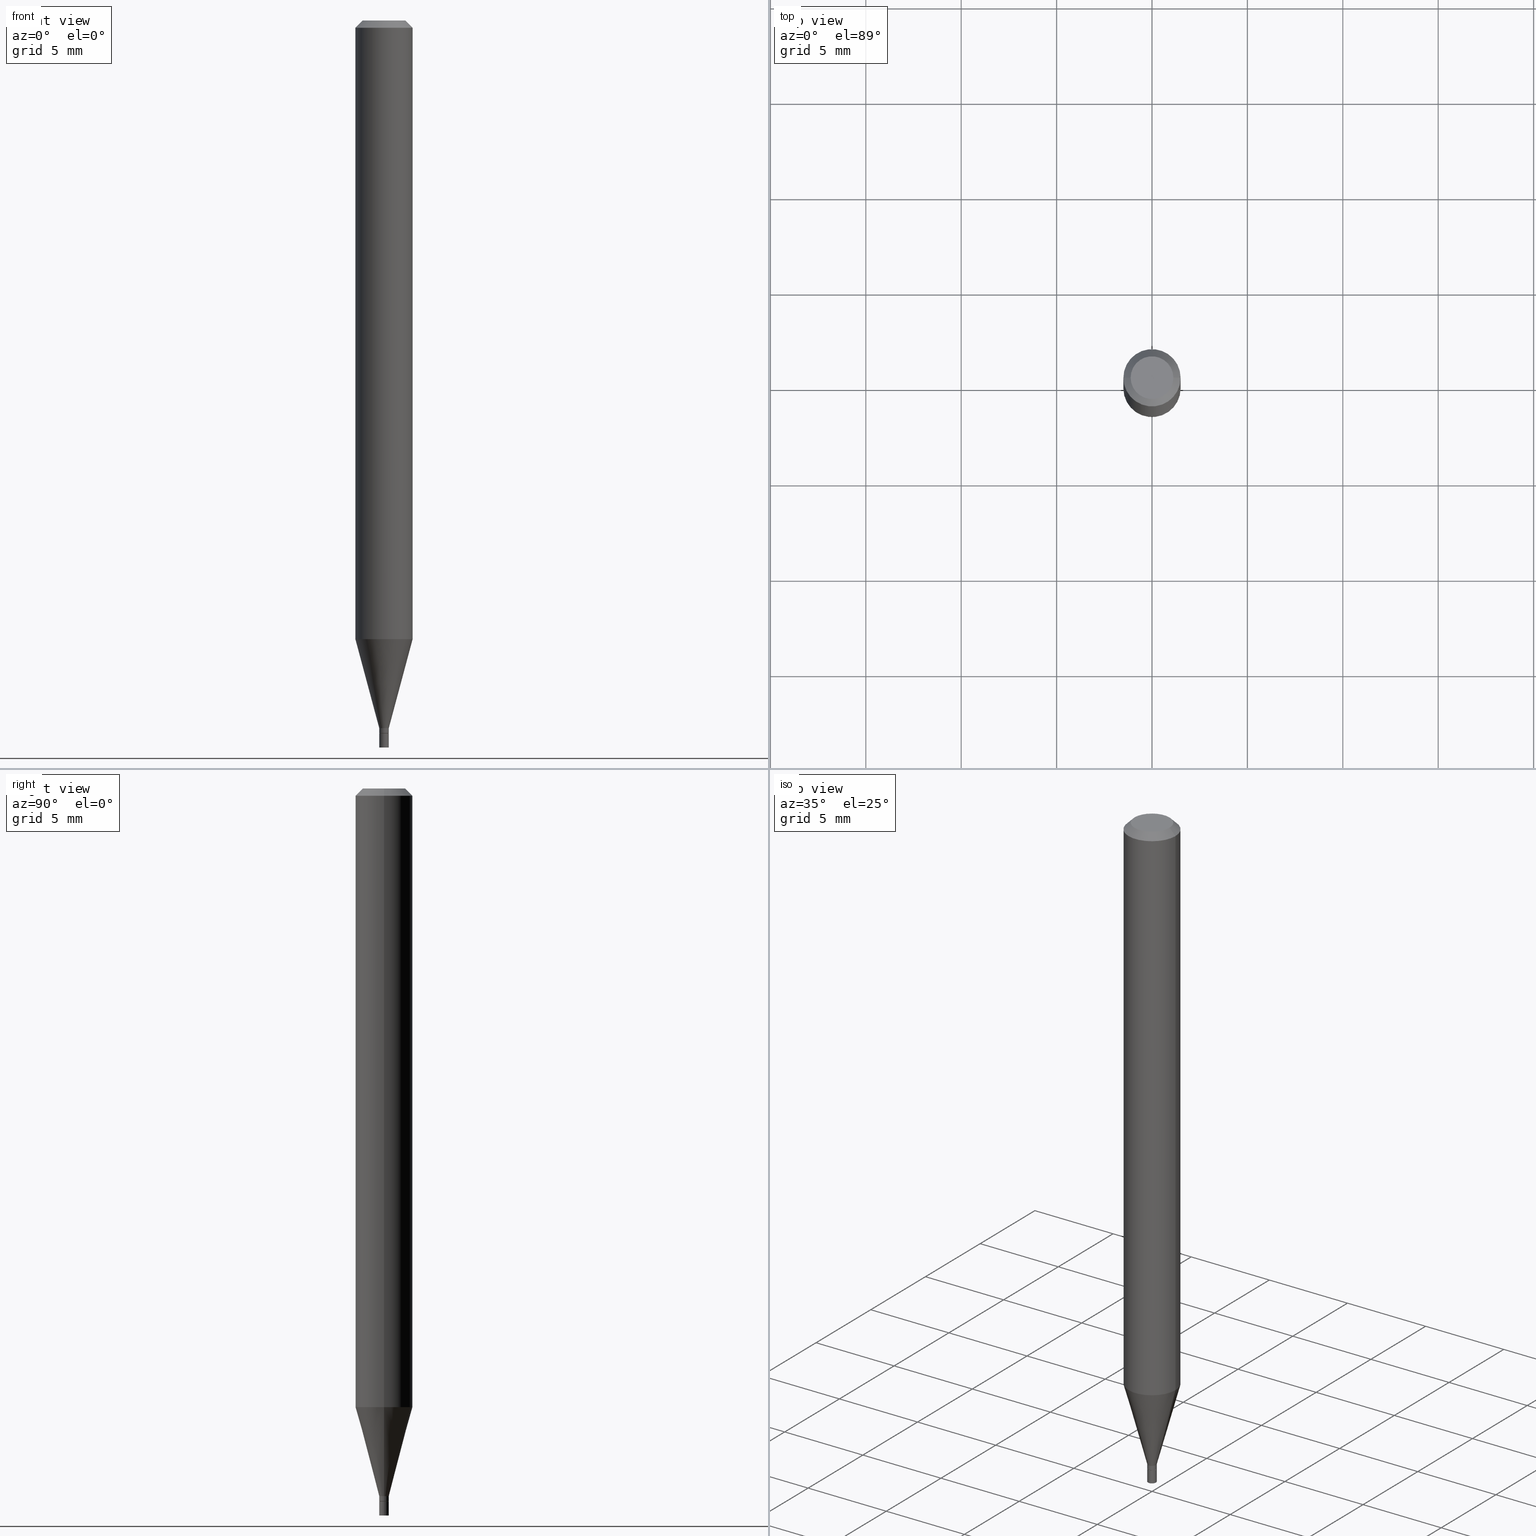
[diagram: canonical four-view strip — front | top / right | iso, engineering-drawing reading convention]
A machine part, canonical four-view strip (front | top / right | iso — engineering-drawing reading convention). The complete STEP part file that produces these views, byte-faithful:
ISO-10303-21;
HEADER;
FILE_DESCRIPTION (( 'STEP AP203' ),
    '1' );
FILE_NAME ('02804.STEP',
    '2024-03-18T21:40:59',
    ( '' ),
    ( '' ),
    'SwSTEP 2.0',
    'SolidWorks 2023',
    '' );
FILE_SCHEMA (( 'CONFIG_CONTROL_DESIGN' ));
ENDSEC;

DATA;
#1 = DIRECTION ( 'NONE',  ( -1.000000000000000000, 6.982962677686265922E-15, -4.876176775795935793E-29 ) ) ;
#2 = DIRECTION ( 'NONE',  ( -2.445468806185136877E-29, 3.491481338843145188E-15, 1.000000000000000000 ) ) ;
#3 = DIRECTION ( 'NONE',  ( -2.445468806185136597E-29, 3.491481338843145583E-15, 1.000000000000000000 ) ) ;
#4 = CALENDAR_DATE ( 2024, 18, 3 ) ;
#5 = ORIENTED_EDGE ( 'NONE', *, *, #219, .T. ) ;
#6 = ORIENTED_EDGE ( 'NONE', *, *, #318, .T. ) ;
#7 = SECURITY_CLASSIFICATION_LEVEL ( 'unclassified' ) ;
#8 = LOCAL_TIME ( 17, 40, 59.00000000000000000, #338 ) ;
#9 = ORIENTED_EDGE ( 'NONE', *, *, #453, .F. ) ;
#10 = VECTOR ( 'NONE', #58, 39.37007874015748143 ) ;
#11 = DIRECTION ( 'NONE',  ( -2.445468806185136597E-29, 3.491481338843145583E-15, 1.000000000000000000 ) ) ;
#12 = ORIENTED_EDGE ( 'NONE', *, *, #289, .T. ) ;
#13 = DIRECTION ( 'NONE',  ( 1.000000000000000000, -6.982962677686276177E-15, 0.000000000000000000 ) ) ;
#14 = PERSON_AND_ORGANIZATION ( #231, #210 ) ;
#15 = ORIENTED_EDGE ( 'NONE', *, *, #271, .T. ) ;
#16 = DIRECTION ( 'NONE',  ( -2.445468806185136597E-29, 3.491481338843145583E-15, 1.000000000000000000 ) ) ;
#17 = PRODUCT_RELATED_PRODUCT_CATEGORY ( 'detail', '', ( #373 ) ) ;
#18 = ORIENTED_EDGE ( 'NONE', *, *, #293, .F. ) ;
#19 = DIRECTION ( 'NONE',  ( -2.445468806185136877E-29, 3.491481338843145188E-15, 1.000000000000000000 ) ) ;
#20 = CONICAL_SURFACE ( 'NONE', #97, 0.009349999999999998937, 0.7853981633974728149 ) ;
#21 = CARTESIAN_POINT ( 'NONE',  ( 3.570384457030299835E-29, -5.097562754710993158E-15, -1.459999999999999964 ) ) ;
#22 = CARTESIAN_POINT ( 'NONE',  ( -0.05904999999999999832, 3.599717260347268549E-16, -0.01499999999999999944 ) ) ;
#23 = ADVANCED_FACE ( 'NONE', ( #332 ), #20, .T. ) ;
#24 = ORIENTED_EDGE ( 'NONE', *, *, #135, .F. ) ;
#25 = CONICAL_SURFACE ( 'NONE', #275, 0.009849999999999924788, 0.2617993877991505181 ) ;
#26 = CONICAL_SURFACE ( 'NONE', #84, 0.009849999999999924788, 0.2617993877991505181 ) ;
#27 = ORIENTED_EDGE ( 'NONE', *, *, #143, .F. ) ;
#28 = ADVANCED_FACE ( 'NONE', ( #148 ), #100, .T. ) ;
#29 = ADVANCED_FACE ( 'NONE', ( #440 ), #42, .T. ) ;
#30 = EDGE_LOOP ( 'NONE', ( #167, #99, #399, #226 ) ) ;
#31 = CIRCLE ( 'NONE', #295, 0.009849999999999924788 ) ;
#32 = LENGTH_MEASURE_WITH_UNIT ( LENGTH_MEASURE( 0.02539999999999999897 ), #171 );
#33 = DIRECTION ( 'NONE',  ( -2.445468806185136597E-29, 3.491481338843145583E-15, 1.000000000000000000 ) ) ;
#34 =( CONVERSION_BASED_UNIT ( 'INCH', #32 ) LENGTH_UNIT ( ) NAMED_UNIT ( #282 ) );
#35 = DIRECTION ( 'NONE',  ( 1.000000000000000000, -6.982962677686285643E-15, 0.000000000000000000 ) ) ;
#36 = DIRECTION ( 'NONE',  ( 1.000000000000000000, -6.982962677686273021E-15, 0.000000000000000000 ) ) ;
#37 = APPLICATION_CONTEXT ( 'configuration controlled 3d designs of mechanical parts and assemblies' ) ;
#38 = DIRECTION ( 'NONE',  ( 1.000000000000000000, -6.982962677686276177E-15, 0.000000000000000000 ) ) ;
#39 = VECTOR ( 'NONE', #306, 39.37007874015748143 ) ;
#40 = CARTESIAN_POINT ( 'NONE',  ( 0.000000000000000000, 0.000000000000000000, 0.000000000000000000 ) ) ;
#41 = CIRCLE ( 'NONE', #159, 0.009849999999999999381 ) ;
#42 = CYLINDRICAL_SURFACE ( 'NONE', #383, 0.009849999999999921318 ) ;
#43 = EDGE_CURVE ( 'NONE', #157, #329, #170, .T. ) ;
#44 = PERSON_AND_ORGANIZATION_ROLE ( 'design_supplier' ) ;
#45 = VERTEX_POINT ( 'NONE', #208 ) ;
#46 = DIRECTION ( 'NONE',  ( -2.445468806185136597E-29, 3.491481338843145583E-15, 1.000000000000000000 ) ) ;
#47 = DATE_AND_TIME ( #220, #390 ) ;
#48 = ORIENTED_EDGE ( 'NONE', *, *, #396, .T. ) ;
#49 = CARTESIAN_POINT ( 'NONE',  ( 3.668203209277705088E-31, -5.237222008264718399E-17, -0.01499999999999999944 ) ) ;
#50 = PERSON_AND_ORGANIZATION ( #231, #210 ) ;
#51 = CIRCLE ( 'NONE', #347, 0.04404999999999999888 ) ;
#52 = EDGE_CURVE ( 'NONE', #266, #85, #442, .T. ) ;
#53 = AXIS2_PLACEMENT_3D ( 'NONE', #294, #258, #351 ) ;
#54 = DIRECTION ( 'NONE',  ( 1.000000000000000000, -6.982962677686229634E-15, 0.000000000000000000 ) ) ;
#55 = VECTOR ( 'NONE', #92, 39.37007874015748143 ) ;
#56 = COORDINATED_UNIVERSAL_TIME_OFFSET ( 5, 0, .BEHIND. ) ;
#57 = ORIENTED_EDGE ( 'NONE', *, *, #241, .F. ) ;
#58 = DIRECTION ( 'NONE',  ( -2.445468806185136877E-29, 3.491481338843145188E-15, 1.000000000000000000 ) ) ;
#59 = ORIENTED_EDGE ( 'NONE', *, *, #271, .F. ) ;
#60 = CARTESIAN_POINT ( 'NONE',  ( 0.009849999999999999381, -6.878218237520971813E-17, 4.803034124158995733E-31 ) ) ;
#61 = DIRECTION ( 'NONE',  ( 1.000000000000000000, -6.982962677686229634E-15, 0.000000000000000000 ) ) ;
#62 = VECTOR ( 'NONE', #261, 39.37007874015748854 ) ;
#63 = EDGE_CURVE ( 'NONE', #254, #77, #302, .T. ) ;
#64 = CONICAL_SURFACE ( 'NONE', #71, 0.05904999999999999832, 0.7853981633974206344 ) ;
#65 = CARTESIAN_POINT ( 'NONE',  ( 0.000000000000000000, 0.000000000000000000, 0.000000000000000000 ) ) ;
#66 = EDGE_LOOP ( 'NONE', ( #311, #59, #380, #328 ) ) ;
#67 = EDGE_LOOP ( 'NONE', ( #48, #415 ) ) ;
#68 = DIRECTION ( 'NONE',  ( 0.2588190451025217942, 1.565188264969618812E-15, 0.9659258262890679791 ) ) ;
#69 = ADVANCED_FACE ( 'NONE', ( #433 ), #25, .T. ) ;
#70 = CARTESIAN_POINT ( 'NONE',  ( -0.04404999999999999888, 3.337856159934048437E-16, 8.332887894987363815E-16 ) ) ;
#71 = AXIS2_PLACEMENT_3D ( 'NONE', #288, #395, #434 ) ;
#72 = CARTESIAN_POINT ( 'NONE',  ( 0.000000000000000000, 0.000000000000000000, 0.000000000000000000 ) ) ;
#73 = FACE_OUTER_BOUND ( 'NONE', #238, .T. ) ;
#74 = ADVANCED_FACE ( 'NONE', ( #105 ), #397, .T. ) ;
#75 = FACE_OUTER_BOUND ( 'NONE', #66, .T. ) ;
#76 = CARTESIAN_POINT ( 'NONE',  ( 3.075995059520799729E-16, 0.04404999999999999888, 2.628446417733287467E-16 ) ) ;
#77 = VERTEX_POINT ( 'NONE', #249 ) ;
#78 = LINE ( 'NONE', #174, #87 ) ;
#79 = ADVANCED_FACE ( 'NONE', ( #465 ), #394, .F. ) ;
#80 = APPROVAL_DATE_TIME ( #298, #330 ) ;
#81 = CARTESIAN_POINT ( 'NONE',  ( 0.009849999999999999381, -5.203005491144055129E-15, -1.470500000000000140 ) ) ;
#82 = DIRECTION ( 'NONE',  ( 1.000000000000000000, -6.982962677686285643E-15, 0.000000000000000000 ) ) ;
#83 = APPROVAL_ROLE ( '' ) ;
#84 = AXIS2_PLACEMENT_3D ( 'NONE', #457, #382, #379 ) ;
#85 = VERTEX_POINT ( 'NONE', #400 ) ;
#86 = MANIFOLD_SOLID_BREP ( 'Body-Move/Copy2[1]', #246 ) ;
#87 = VECTOR ( 'NONE', #355, 39.37007874015748143 ) ;
#88 = DIRECTION ( 'NONE',  ( -2.445468806185136597E-29, 3.491481338843145583E-15, 1.000000000000000000 ) ) ;
#89 = ORIENTED_EDGE ( 'NONE', *, *, #289, .F. ) ;
#90 = DIRECTION ( 'NONE',  ( -2.445468806185136597E-29, 3.491481338843145583E-15, 1.000000000000000000 ) ) ;
#91 = DIRECTION ( 'NONE',  ( 1.000000000000000000, -6.982962677686273021E-15, 0.000000000000000000 ) ) ;
#92 = DIRECTION ( 'NONE',  ( 0.7071067811865279218, -7.319954787623189781E-15, -0.7071067811865671127 ) ) ;
#93 = CIRCLE ( 'NONE', #422, 0.05904999999999999832 ) ;
#94 = ADVANCED_FACE ( 'NONE', ( #75 ), #256, .T. ) ;
#95 = CARTESIAN_POINT ( 'NONE',  ( -0.05904999999999999832, -1.834844512474547431E-15, -0.01499999999999999944 ) ) ;
#96 = CC_DESIGN_DATE_AND_TIME_ASSIGNMENT ( #262, #414, ( #200 ) ) ;
#97 = AXIS2_PLACEMENT_3D ( 'NONE', #247, #111, #38 ) ;
#98 = EDGE_CURVE ( 'NONE', #191, #432, #78, .T. ) ;
#99 = ORIENTED_EDGE ( 'NONE', *, *, #63, .T. ) ;
#100 = CYLINDRICAL_SURFACE ( 'NONE', #53, 0.05904999999999999832 ) ;
#101 = CC_DESIGN_PERSON_AND_ORGANIZATION_ASSIGNMENT ( #409, #44, ( #381 ) ) ;
#102 = AXIS2_PLACEMENT_3D ( 'NONE', #137, #3, #391 ) ;
#103 = MECHANICAL_CONTEXT ( 'NONE', #126, 'mechanical' ) ;
#104 = APPROVAL_PERSON_ORGANIZATION ( #14, #236, #83 ) ;
#105 = FACE_OUTER_BOUND ( 'NONE', #393, .T. ) ;
#106 = DIRECTION ( 'NONE',  ( -2.445468806185136597E-29, 3.491481338843145583E-15, 1.000000000000000000 ) ) ;
#107 = ADVANCED_FACE ( 'NONE', ( #279 ), #362, .F. ) ;
#108 = DIRECTION ( 'NONE',  ( 1.000000000000000000, -6.982962677686265922E-15, 4.876176775795935232E-29 ) ) ;
#109 = DIRECTION ( 'NONE',  ( -2.445468806185136877E-29, 3.491481338843145188E-15, 1.000000000000000000 ) ) ;
#110 = ADVANCED_FACE ( 'NONE', ( #287 ), #435, .T. ) ;
#111 = DIRECTION ( 'NONE',  ( -2.445468806185136597E-29, 3.491481338843145583E-15, 1.000000000000000000 ) ) ;
#112 = CALENDAR_DATE ( 2024, 18, 3 ) ;
#113 = CIRCLE ( 'NONE', #224, 0.05904999999999999832 ) ;
#114 = ORIENTED_EDGE ( 'NONE', *, *, #293, .T. ) ;
#115 = CARTESIAN_POINT ( 'NONE',  ( 0.000000000000000000, 0.000000000000000000, 0.000000000000000000 ) ) ;
#116 = DATE_AND_TIME ( #4, #8 ) ;
#117 = CARTESIAN_POINT ( 'NONE',  ( -0.009349999999999998937, -5.067787562975276372E-15, -1.470500000000000140 ) ) ;
#118 = APPROVAL_STATUS ( 'not_yet_approved' ) ;
#119 = ORIENTED_EDGE ( 'NONE', *, *, #52, .F. ) ;
#120 = CARTESIAN_POINT ( 'NONE',  ( -0.009849999999999999381, -5.115734199044412589E-15, -1.500000000000000222 ) ) ;
#121 = AXIS2_PLACEMENT_3D ( 'NONE', #253, #169, #392 ) ;
#122 = ORIENTED_EDGE ( 'NONE', *, *, #98, .F. ) ;
#123 = AXIS2_PLACEMENT_3D ( 'NONE', #356, #142, #325 ) ;
#124 = DIRECTION ( 'NONE',  ( -2.445468806185136597E-29, 3.491481338843145583E-15, 1.000000000000000000 ) ) ;
#125 = PERSON_AND_ORGANIZATION ( #231, #210 ) ;
#126 = APPLICATION_CONTEXT ( 'configuration controlled 3d designs of mechanical parts and assemblies' ) ;
#127 = DIRECTION ( 'NONE',  ( 1.000000000000000000, -6.982962677686282488E-15, 0.000000000000000000 ) ) ;
#128 = FACE_OUTER_BOUND ( 'NONE', #445, .T. ) ;
#129 = FACE_OUTER_BOUND ( 'NONE', #260, .T. ) ;
#130 = CC_DESIGN_DATE_AND_TIME_ASSIGNMENT ( #333, #193, ( #187 ) ) ;
#131 = AXIS2_PLACEMENT_3D ( 'NONE', #337, #335, #61 ) ;
#132 = CC_DESIGN_APPROVAL ( #330, ( #200 ) ) ;
#133 = AXIS2_PLACEMENT_3D ( 'NONE', #299, #412, #230 ) ;
#134 = CARTESIAN_POINT ( 'NONE',  ( -2.037781741262937917E-44, 2.909412258402039979E-30, 8.332887894987386495E-16 ) ) ;
#135 = EDGE_CURVE ( 'NONE', #364, #317, #113, .T. ) ;
#136 = DIRECTION ( 'NONE',  ( 1.000000000000000000, -6.982962677686229634E-15, 0.000000000000000000 ) ) ;
#137 = CARTESIAN_POINT ( 'NONE',  ( 3.668203209277704895E-29, -5.237222008264718177E-15, -1.500000000000000222 ) ) ;
#138 = FACE_OUTER_BOUND ( 'NONE', #229, .T. ) ;
#139 = ORIENTED_EDGE ( 'NONE', *, *, #274, .F. ) ;
#140 = AXIS2_PLACEMENT_3D ( 'NONE', #40, #464, #348 ) ;
#141 = PERSON_AND_ORGANIZATION ( #231, #210 ) ;
#142 = DIRECTION ( 'NONE',  ( 2.438088387897960049E-29, -3.491481338843145188E-15, -1.000000000000000000 ) ) ;
#143 = EDGE_CURVE ( 'NONE', #329, #432, #285, .T. ) ;
#144 = DIRECTION ( 'NONE',  ( -2.445468806185136597E-29, 3.491481338843145583E-15, 1.000000000000000000 ) ) ;
#145 = DIRECTION ( 'NONE',  ( -2.445468806185136597E-29, 3.491481338843145583E-15, 1.000000000000000000 ) ) ;
#146 = SHAPE_DEFINITION_REPRESENTATION ( #413, #461 ) ;
#147 = EDGE_LOOP ( 'NONE', ( #339, #284 ) ) ;
#148 = FACE_OUTER_BOUND ( 'NONE', #386, .T. ) ;
#149 = CC_DESIGN_APPROVAL ( #460, ( #381 ) ) ;
#150 = COORDINATED_UNIVERSAL_TIME_OFFSET ( 5, 0, .BEHIND. ) ;
#151 = VECTOR ( 'NONE', #19, 39.37007874015748143 ) ;
#152 = ORIENTED_EDGE ( 'NONE', *, *, #265, .T. ) ;
#153 = CARTESIAN_POINT ( 'NONE',  ( 0.009849999999999921318, -5.201259750474633625E-15, -1.470000000000000195 ) ) ;
#154 = EDGE_CURVE ( 'NONE', #45, #206, #41, .T. ) ;
#155 = DIRECTION ( 'NONE',  ( 1.000000000000000000, -6.982962677686276177E-15, 0.000000000000000000 ) ) ;
#156 = APPROVAL_ROLE ( '' ) ;
#157 = VERTEX_POINT ( 'NONE', #443 ) ;
#158 = CARTESIAN_POINT ( 'NONE',  ( 0.05904999999999999832, -4.123439461173740327E-16, 2.879382386107500220E-30 ) ) ;
#159 = AXIS2_PLACEMENT_3D ( 'NONE', #297, #90, #54 ) ;
#160 = CARTESIAN_POINT ( 'NONE',  ( 3.570384457030299835E-29, -5.097562754710993158E-15, -1.459999999999999964 ) ) ;
#161 = CC_DESIGN_PERSON_AND_ORGANIZATION_ASSIGNMENT ( #223, #259, ( #200 ) ) ;
#162 = CARTESIAN_POINT ( 'NONE',  ( 0.009849999999999921318, -6.878218237520917578E-17, 4.803034124158958949E-31 ) ) ;
#163 = DIRECTION ( 'NONE',  ( -0.7071067811865279218, 2.468850131082051562E-15, -0.7071067811865671127 ) ) ;
#164 = AXIS2_PLACEMENT_3D ( 'NONE', #76, #218, #1 ) ;
#165 = ORIENTED_EDGE ( 'NONE', *, *, #274, .T. ) ;
#166 = ORIENTED_EDGE ( 'NONE', *, *, #448, .F. ) ;
#167 = ORIENTED_EDGE ( 'NONE', *, *, #404, .F. ) ;
#168 = CIRCLE ( 'NONE', #233, 0.04404999999999999888 ) ;
#169 = DIRECTION ( 'NONE',  ( -2.438088387897960049E-29, 3.491481338843145188E-15, 1.000000000000000000 ) ) ;
#170 = LINE ( 'NONE', #463, #234 ) ;
#171 =( LENGTH_UNIT ( ) NAMED_UNIT ( * ) SI_UNIT ( $, .METRE. ) );
#172 = DIRECTION ( 'NONE',  ( 1.000000000000000000, -6.982962677686266711E-15, 4.876176775795936353E-29 ) ) ;
#173 = ORIENTED_EDGE ( 'NONE', *, *, #305, .T. ) ;
#174 = CARTESIAN_POINT ( 'NONE',  ( -0.009849999999999924788, -5.027574295238623898E-15, -1.459999999999999964 ) ) ;
#175 = VECTOR ( 'NONE', #243, 39.37007874015748143 ) ;
#176 = UNCERTAINTY_MEASURE_WITH_UNIT (LENGTH_MEASURE( 1.000000000000000082E-05 ), #34, 'distance_accuracy_value', 'NONE');
#177 = EDGE_CURVE ( 'NONE', #317, #364, #357, .T. ) ;
#178 = AXIS2_PLACEMENT_3D ( 'NONE', #322, #145, #319 ) ;
#179 = PERSON_AND_ORGANIZATION ( #231, #210 ) ;
#180 = ORIENTED_EDGE ( 'NONE', *, *, #448, .T. ) ;
#181 = DIRECTION ( 'NONE',  ( 1.000000000000000000, -6.982962677686282488E-15, 0.000000000000000000 ) ) ;
#182 = CALENDAR_DATE ( 2024, 18, 3 ) ;
#183 = ORIENTED_EDGE ( 'NONE', *, *, #143, .T. ) ;
#184 = ORIENTED_EDGE ( 'NONE', *, *, #177, .F. ) ;
#185 = VERTEX_POINT ( 'NONE', #189 ) ;
#186 = DIRECTION ( 'NONE',  ( 1.000000000000000000, -6.982962677686266711E-15, 0.000000000000000000 ) ) ;
#187 = SECURITY_CLASSIFICATION ( '', '', #7 ) ;
#188 = ORIENTED_EDGE ( 'NONE', *, *, #43, .T. ) ;
#189 = CARTESIAN_POINT ( 'NONE',  ( -0.009349999999999998937, -5.065138335801165171E-15, -1.470500000000000140 ) ) ;
#190 = APPROVAL_DATE_TIME ( #47, #460 ) ;
#191 = VERTEX_POINT ( 'NONE', #269 ) ;
#192 = DIRECTION ( 'NONE',  ( 0.7071067811865647812, -2.468850131082438104E-15, 0.7071067811865301422 ) ) ;
#193 = DATE_TIME_ROLE ( 'classification_date' ) ;
#194 = EDGE_LOOP ( 'NONE', ( #5, #349, #221, #57 ) ) ;
#195 = DIRECTION ( 'NONE',  ( 1.000000000000000000, -6.982962677686265922E-15, 4.876176775795935793E-29 ) ) ;
#196 = EDGE_CURVE ( 'NONE', #185, #341, #343, .T. ) ;
#197 = DIRECTION ( 'NONE',  ( -2.445468806185136597E-29, 3.491481338843145583E-15, 1.000000000000000000 ) ) ;
#198 = CARTESIAN_POINT ( 'NONE',  ( 0.009349999999999998937, -5.199514009805212911E-15, -1.470500000000000140 ) ) ;
#199 = DIRECTION ( 'NONE',  ( -2.445468806185136597E-29, 3.491481338843145583E-15, 1.000000000000000000 ) ) ;
#200 = PRODUCT_DEFINITION ( 'UNKNOWN', '', #381, #423 ) ;
#201 = AXIS2_PLACEMENT_3D ( 'NONE', #444, #124, #91 ) ;
#202 = ORIENTED_EDGE ( 'NONE', *, *, #453, .T. ) ;
#203 = ORIENTED_EDGE ( 'NONE', *, *, #321, .F. ) ;
#204 = EDGE_LOOP ( 'NONE', ( #183, #180, #184, #89 ) ) ;
#205 = CC_DESIGN_PERSON_AND_ORGANIZATION_ASSIGNMENT ( #141, #286, ( #373 ) ) ;
#206 = VERTEX_POINT ( 'NONE', #81 ) ;
#207 = CIRCLE ( 'NONE', #273, 0.009849999999999999381 ) ;
#208 = CARTESIAN_POINT ( 'NONE',  ( -0.009849999999999999381, -5.115734199044412589E-15, -1.470500000000000140 ) ) ;
#209 = AXIS2_PLACEMENT_3D ( 'NONE', #344, #88, #82 ) ;
#210 = ORGANIZATION ( 'UNSPECIFIED', 'UNSPECIFIED', '' ) ;
#211 = DIRECTION ( 'NONE',  ( 1.000000000000000000, -6.982962677686265922E-15, 4.876176775795935232E-29 ) ) ;
#212 = DIRECTION ( 'NONE',  ( -2.445468806185136597E-29, 3.491481338843145583E-15, 1.000000000000000000 ) ) ;
#213 = CARTESIAN_POINT ( 'NONE',  ( -0.009849999999999921318, 6.998845947236930924E-17, -4.845151063901043591E-31 ) ) ;
#214 = DIRECTION ( 'NONE',  ( -2.445468806185136597E-29, 3.491481338843145583E-15, 1.000000000000000000 ) ) ;
#215 = DIRECTION ( 'NONE',  ( -1.000000000000000000, 6.982962677686266711E-15, 0.000000000000000000 ) ) ;
#216 = CLOSED_SHELL ( 'NONE', ( #74, #23, #418, #374, #69, #326, #28, #94, #79, #416, #251, #29 ) ) ;
#217 = ORIENTED_EDGE ( 'NONE', *, *, #358, .F. ) ;
#218 = DIRECTION ( 'NONE',  ( 2.438088387897960049E-29, -3.491481338843145188E-15, -1.000000000000000000 ) ) ;
#219 = EDGE_CURVE ( 'NONE', #77, #254, #377, .T. ) ;
#220 = CALENDAR_DATE ( 2024, 18, 3 ) ;
#221 = ORIENTED_EDGE ( 'NONE', *, *, #396, .F. ) ;
#222 = LINE ( 'NONE', #60, #151 ) ;
#223 = PERSON_AND_ORGANIZATION ( #231, #210 ) ;
#224 = AXIS2_PLACEMENT_3D ( 'NONE', #437, #46, #186 ) ;
#225 = APPROVAL_PERSON_ORGANIZATION ( #179, #330, #156 ) ;
#226 = ORIENTED_EDGE ( 'NONE', *, *, #154, .F. ) ;
#227 = ADVANCED_FACE ( 'NONE', ( #372 ), #340, .F. ) ;
#228 = LINE ( 'NONE', #158, #10 ) ;
#229 = EDGE_LOOP ( 'NONE', ( #203, #292 ) ) ;
#230 = DIRECTION ( 'NONE',  ( 1.000000000000000000, -6.982962677686276177E-15, 0.000000000000000000 ) ) ;
#231 = PERSON ( 'UNSPECIFIED', 'UNSPECIFIED', 'UNSPECIFIED', ('UNSPECIFIED'), ('UNSPECIFIED'), ('UNSPECIFIED') ) ;
#232 = LINE ( 'NONE', #162, #39 ) ;
#233 = AXIS2_PLACEMENT_3D ( 'NONE', #407, #366, #267 ) ;
#234 = VECTOR ( 'NONE', #68, 39.37007874015748143 ) ;
#235 = CYLINDRICAL_SURFACE ( 'NONE', #350, 0.05904999999999999832 ) ;
#236 = APPROVAL ( #368, 'UNSPECIFIED' ) ;
#237 = CARTESIAN_POINT ( 'NONE',  ( 3.596061879495243621E-29, -5.134223308768845522E-15, -1.470500000000000140 ) ) ;
#238 = EDGE_LOOP ( 'NONE', ( #324, #384, #458, #217 ) ) ;
#239 = AXIS2_PLACEMENT_3D ( 'NONE', #427, #33, #35 ) ;
#240 = MANIFOLD_SOLID_BREP ( 'Body-Move/Copy2[2]', #216 ) ;
#241 = EDGE_CURVE ( 'NONE', #77, #206, #222, .T. ) ;
#242 =( NAMED_UNIT ( * ) PLANE_ANGLE_UNIT ( ) SI_UNIT ( $, .RADIAN. ) );
#243 = DIRECTION ( 'NONE',  ( -2.445468806185136877E-29, 3.491481338843145188E-15, 1.000000000000000000 ) ) ;
#244 = ORIENTED_EDGE ( 'NONE', *, *, #441, .F. ) ;
#245 = CIRCLE ( 'NONE', #248, 0.009849999999999924788 ) ;
#246 = CLOSED_SHELL ( 'NONE', ( #110, #227, #428, #107 ) ) ;
#247 = CARTESIAN_POINT ( 'NONE',  ( 3.596061879495243621E-29, -5.134223308768845522E-15, -1.470500000000000140 ) ) ;
#248 = AXIS2_PLACEMENT_3D ( 'NONE', #21, #16, #127 ) ;
#249 = CARTESIAN_POINT ( 'NONE',  ( 0.009849999999999999381, -5.306004190639927784E-15, -1.500000000000000222 ) ) ;
#250 = DIRECTION ( 'NONE',  ( -2.445468806185136597E-29, 3.491481338843145583E-15, 1.000000000000000000 ) ) ;
#251 = ADVANCED_FACE ( 'NONE', ( #129 ), #388, .T. ) ;
#252 = CARTESIAN_POINT ( 'NONE',  ( 3.570384457030299835E-29, -5.097562754710993158E-15, -1.459999999999999964 ) ) ;
#253 = CARTESIAN_POINT ( 'NONE',  ( 3.596061879495243621E-29, -5.134223308768845522E-15, -1.470500000000000140 ) ) ;
#254 = VERTEX_POINT ( 'NONE', #120 ) ;
#255 = DIRECTION ( 'NONE',  ( 2.445468806185136597E-29, -3.491481338843145583E-15, -1.000000000000000000 ) ) ;
#256 = CONICAL_SURFACE ( 'NONE', #431, 0.05904999999999999832, 0.7853981633974206344 ) ;
#257 = PERSON_AND_ORGANIZATION_ROLE ( 'creator' ) ;
#258 = DIRECTION ( 'NONE',  ( -2.445468806185136597E-29, 3.491481338843145583E-15, 1.000000000000000000 ) ) ;
#259 = PERSON_AND_ORGANIZATION_ROLE ( 'creator' ) ;
#260 = EDGE_LOOP ( 'NONE', ( #371, #389, #114, #278 ) ) ;
#261 = DIRECTION ( 'NONE',  ( -0.7071067811865647812, 7.493145998870415691E-15, 0.7071067811865301422 ) ) ;
#262 = DATE_AND_TIME ( #112, #429 ) ;
#263 = ORIENTED_EDGE ( 'NONE', *, *, #441, .T. ) ;
#264 = DIRECTION ( 'NONE',  ( 1.000000000000000000, -6.982962677686282488E-15, 0.000000000000000000 ) ) ;
#265 = EDGE_CURVE ( 'NONE', #185, #85, #403, .T. ) ;
#266 = VERTEX_POINT ( 'NONE', #153 ) ;
#267 = DIRECTION ( 'NONE',  ( 1.000000000000000000, -6.982962677686265922E-15, 4.957392940945096353E-29 ) ) ;
#268 = APPROVAL_STATUS ( 'not_yet_approved' ) ;
#269 = CARTESIAN_POINT ( 'NONE',  ( -0.009849999999999924788, -4.532233292785705389E-15, -1.459999999999999964 ) ) ;
#270 = CARTESIAN_POINT ( 'NONE',  ( 0.05904999999999999138, -4.868811721916501294E-15, -1.276383100267611814 ) ) ;
#271 = EDGE_CURVE ( 'NONE', #410, #315, #168, .T. ) ;
#272 = CC_DESIGN_APPROVAL ( #236, ( #187 ) ) ;
#273 = AXIS2_PLACEMENT_3D ( 'NONE', #237, #144, #136 ) ;
#274 = EDGE_CURVE ( 'NONE', #157, #191, #31, .T. ) ;
#275 = AXIS2_PLACEMENT_3D ( 'NONE', #252, #354, #181 ) ;
#276 = LINE ( 'NONE', #352, #175 ) ;
#277 = ORIENTED_EDGE ( 'NONE', *, *, #52, .T. ) ;
#278 = ORIENTED_EDGE ( 'NONE', *, *, #280, .F. ) ;
#279 = FACE_OUTER_BOUND ( 'NONE', #67, .T. ) ;
#280 = EDGE_CURVE ( 'NONE', #85, #266, #421, .T. ) ;
#281 = CARTESIAN_POINT ( 'NONE',  ( -0.05904999999999999832, 4.195754854663391478E-16, -2.904631170795521892E-30 ) ) ;
#282 = DIMENSIONAL_EXPONENTS ( 1.000000000000000000, 0.000000000000000000, 0.000000000000000000, 0.000000000000000000, 0.000000000000000000, 0.000000000000000000, 0.000000000000000000 ) ;
#283 = EDGE_LOOP ( 'NONE', ( #15, #303 ) ) ;
#284 = ORIENTED_EDGE ( 'NONE', *, *, #63, .F. ) ;
#285 = CIRCLE ( 'NONE', #201, 0.05904999999999999832 ) ;
#286 = PERSON_AND_ORGANIZATION_ROLE ( 'design_owner' ) ;
#287 = FACE_OUTER_BOUND ( 'NONE', #194, .T. ) ;
#288 = CARTESIAN_POINT ( 'NONE',  ( 3.668203209277705088E-31, -5.237222008264718399E-17, -0.01499999999999999944 ) ) ;
#289 = EDGE_CURVE ( 'NONE', #329, #317, #228, .T. ) ;
#290 = CARTESIAN_POINT ( 'NONE',  ( 3.668203209277705088E-31, -5.237222008264718399E-17, -0.01499999999999999944 ) ) ;
#291 = COORDINATED_UNIVERSAL_TIME_OFFSET ( 5, 0, .BEHIND. ) ;
#292 = ORIENTED_EDGE ( 'NONE', *, *, #196, .F. ) ;
#293 = EDGE_CURVE ( 'NONE', #341, #266, #304, .T. ) ;
#294 = CARTESIAN_POINT ( 'NONE',  ( 0.000000000000000000, 0.000000000000000000, 0.000000000000000000 ) ) ;
#295 = AXIS2_PLACEMENT_3D ( 'NONE', #160, #197, #264 ) ;
#296 = VECTOR ( 'NONE', #163, 39.37007874015748143 ) ;
#297 = CARTESIAN_POINT ( 'NONE',  ( 3.596061879495243621E-29, -5.134223308768845522E-15, -1.470500000000000140 ) ) ;
#298 = DATE_AND_TIME ( #182, #336 ) ;
#299 = CARTESIAN_POINT ( 'NONE',  ( 3.596061879495243621E-29, -5.134223308768845522E-15, -1.470500000000000140 ) ) ;
#300 = EDGE_LOOP ( 'NONE', ( #9, #369, #6, #313 ) ) ;
#301 = AXIS2_PLACEMENT_3D ( 'NONE', #424, #361, #13 ) ;
#302 = CIRCLE ( 'NONE', #102, 0.009849999999999999381 ) ;
#303 = ORIENTED_EDGE ( 'NONE', *, *, #408, .T. ) ;
#304 = LINE ( 'NONE', #450, #454 ) ;
#305 = EDGE_CURVE ( 'NONE', #191, #157, #245, .T. ) ;
#306 = DIRECTION ( 'NONE',  ( -2.445468806185136877E-29, 3.491481338843145188E-15, 1.000000000000000000 ) ) ;
#307 = FACE_OUTER_BOUND ( 'NONE', #204, .T. ) ;
#308 = CC_DESIGN_PERSON_AND_ORGANIZATION_ASSIGNMENT ( #438, #257, ( #381 ) ) ;
#309 = AXIS2_PLACEMENT_3D ( 'NONE', #72, #212, #108 ) ;
#310 = VECTOR ( 'NONE', #109, 39.37007874015748143 ) ;
#311 = ORIENTED_EDGE ( 'NONE', *, *, #353, .F. ) ;
#312 = DIRECTION ( 'NONE',  ( 1.000000000000000000, -6.982962677686265922E-15, 4.957392940945096353E-29 ) ) ;
#313 = ORIENTED_EDGE ( 'NONE', *, *, #305, .F. ) ;
#314 = AXIS2_PLACEMENT_3D ( 'NONE', #49, #342, #451 ) ;
#315 = VERTEX_POINT ( 'NONE', #375 ) ;
#316 = PLANE ( 'NONE',  #121 ) ;
#317 = VERTEX_POINT ( 'NONE', #417 ) ;
#318 = EDGE_CURVE ( 'NONE', #266, #157, #232, .T. ) ;
#319 = DIRECTION ( 'NONE',  ( 1.000000000000000000, -6.982962677686266711E-15, 4.876176775795936353E-29 ) ) ;
#320 =( NAMED_UNIT ( * ) SI_UNIT ( $, .STERADIAN. ) SOLID_ANGLE_UNIT ( ) );
#321 = EDGE_CURVE ( 'NONE', #341, #185, #367, .T. ) ;
#322 = CARTESIAN_POINT ( 'NONE',  ( 0.000000000000000000, 0.000000000000000000, 0.000000000000000000 ) ) ;
#323 = CARTESIAN_POINT ( 'NONE',  ( 0.000000000000000000, 0.000000000000000000, 0.000000000000000000 ) ) ;
#324 = ORIENTED_EDGE ( 'NONE', *, *, #408, .F. ) ;
#325 = DIRECTION ( 'NONE',  ( -1.000000000000000000, 6.982962677686265922E-15, -4.876176775795935793E-29 ) ) ;
#326 = ADVANCED_FACE ( 'NONE', ( #128 ), #26, .T. ) ;
#327 = FACE_OUTER_BOUND ( 'NONE', #30, .T. ) ;
#328 = ORIENTED_EDGE ( 'NONE', *, *, #135, .T. ) ;
#329 = VERTEX_POINT ( 'NONE', #270 ) ;
#330 = APPROVAL ( #118, 'UNSPECIFIED' ) ;
#331 = CALENDAR_DATE ( 2024, 18, 3 ) ;
#332 = FACE_OUTER_BOUND ( 'NONE', #406, .T. ) ;
#333 = DATE_AND_TIME ( #331, #455 ) ;
#334 = ORIENTED_EDGE ( 'NONE', *, *, #321, .T. ) ;
#335 = DIRECTION ( 'NONE',  ( -2.445468806185136597E-29, 3.491481338843145583E-15, 1.000000000000000000 ) ) ;
#336 = LOCAL_TIME ( 17, 40, 59.00000000000000000, #56 ) ;
#337 = CARTESIAN_POINT ( 'NONE',  ( 3.668203209277704895E-29, -5.237222008264718177E-15, -1.500000000000000222 ) ) ;
#338 = COORDINATED_UNIVERSAL_TIME_OFFSET ( 5, 0, .BEHIND. ) ;
#339 = ORIENTED_EDGE ( 'NONE', *, *, #219, .F. ) ;
#340 = PLANE ( 'NONE',  #401 ) ;
#341 = VERTEX_POINT ( 'NONE', #198 ) ;
#342 = DIRECTION ( 'NONE',  ( -2.445468806185136597E-29, 3.491481338843145583E-15, 1.000000000000000000 ) ) ;
#343 = CIRCLE ( 'NONE', #133, 0.009349999999999998937 ) ;
#344 = CARTESIAN_POINT ( 'NONE',  ( 3.594839145092150820E-29, -5.132477568099424807E-15, -1.470000000000000195 ) ) ;
#345 = AXIS2_PLACEMENT_3D ( 'NONE', #323, #106, #211 ) ;
#346 = LINE ( 'NONE', #419, #55 ) ;
#347 = AXIS2_PLACEMENT_3D ( 'NONE', #134, #436, #312 ) ;
#348 = DIRECTION ( 'NONE',  ( 1.000000000000000000, 0.000000000000000000, 0.000000000000000000 ) ) ;
#349 = ORIENTED_EDGE ( 'NONE', *, *, #404, .T. ) ;
#350 = AXIS2_PLACEMENT_3D ( 'NONE', #65, #199, #456 ) ;
#351 = DIRECTION ( 'NONE',  ( 1.000000000000000000, -6.982962677686266711E-15, 4.876176775795936353E-29 ) ) ;
#352 = CARTESIAN_POINT ( 'NONE',  ( -0.009849999999999999381, 6.998845947236986391E-17, -4.845151063901081251E-31 ) ) ;
#353 = EDGE_CURVE ( 'NONE', #315, #317, #346, .T. ) ;
#354 = DIRECTION ( 'NONE',  ( -2.445468806185136597E-29, 3.491481338843145583E-15, 1.000000000000000000 ) ) ;
#355 = DIRECTION ( 'NONE',  ( -0.2588190451025217942, 5.211531920934552619E-15, 0.9659258262890679791 ) ) ;
#356 = CARTESIAN_POINT ( 'NONE',  ( 6.878218237524566060E-17, 0.009849999999994862865, -1.470500000000000140 ) ) ;
#357 = CIRCLE ( 'NONE', #314, 0.05904999999999999832 ) ;
#358 = EDGE_CURVE ( 'NONE', #410, #364, #378, .T. ) ;
#359 = APPROVAL_ROLE ( '' ) ;
#360 = ORIENTED_EDGE ( 'NONE', *, *, #98, .T. ) ;
#361 = DIRECTION ( 'NONE',  ( -2.445468806185136597E-29, 3.491481338843145583E-15, 1.000000000000000000 ) ) ;
#362 = PLANE ( 'NONE',  #123 ) ;
#363 = COORDINATED_UNIVERSAL_TIME_OFFSET ( 5, 0, .BEHIND. ) ;
#364 = VERTEX_POINT ( 'NONE', #95 ) ;
#365 = DIRECTION ( 'NONE',  ( -2.438088387897960049E-29, 3.491481338843145188E-15, 1.000000000000000000 ) ) ;
#366 = DIRECTION ( 'NONE',  ( -2.445468806185136597E-29, 3.491481338843145583E-15, 1.000000000000000000 ) ) ;
#367 = CIRCLE ( 'NONE', #301, 0.009349999999999998937 ) ;
#368 = APPROVAL_STATUS ( 'not_yet_approved' ) ;
#369 = ORIENTED_EDGE ( 'NONE', *, *, #280, .T. ) ;
#370 = CARTESIAN_POINT ( 'NONE',  ( 3.596061879495243621E-29, -5.134223308768845522E-15, -1.470500000000000140 ) ) ;
#371 = ORIENTED_EDGE ( 'NONE', *, *, #265, .F. ) ;
#372 = FACE_OUTER_BOUND ( 'NONE', #147, .T. ) ;
#373 = PRODUCT ( '02804', '02804', '', ( #103 ) ) ;
#374 = ADVANCED_FACE ( 'NONE', ( #307 ), #235, .T. ) ;
#375 = CARTESIAN_POINT ( 'NONE',  ( 0.04404999999999999888, -3.798447818264445781E-16, 8.332887894987410161E-16 ) ) ;
#376 = CC_DESIGN_PERSON_AND_ORGANIZATION_ASSIGNMENT ( #50, #402, ( #187 ) ) ;
#377 = CIRCLE ( 'NONE', #131, 0.009849999999999999381 ) ;
#378 = LINE ( 'NONE', #22, #296 ) ;
#379 = DIRECTION ( 'NONE',  ( 1.000000000000000000, -6.982962677686282488E-15, 0.000000000000000000 ) ) ;
#380 = ORIENTED_EDGE ( 'NONE', *, *, #358, .T. ) ;
#381 = PRODUCT_DEFINITION_FORMATION_WITH_SPECIFIED_SOURCE ( 'ANY', '', #373, .NOT_KNOWN. ) ;
#382 = DIRECTION ( 'NONE',  ( -2.445468806185136597E-29, 3.491481338843145583E-15, 1.000000000000000000 ) ) ;
#383 = AXIS2_PLACEMENT_3D ( 'NONE', #115, #214, #172 ) ;
#384 = ORIENTED_EDGE ( 'NONE', *, *, #353, .T. ) ;
#385 = LINE ( 'NONE', #213, #310 ) ;
#386 = EDGE_LOOP ( 'NONE', ( #166, #263, #12, #24 ) ) ;
#387 = CYLINDRICAL_SURFACE ( 'NONE', #345, 0.009849999999999999381 ) ;
#388 = CONICAL_SURFACE ( 'NONE', #459, 0.009349999999999998937, 0.7853981633974728149 ) ;
#389 = ORIENTED_EDGE ( 'NONE', *, *, #196, .T. ) ;
#390 = LOCAL_TIME ( 17, 40, 59.00000000000000000, #363 ) ;
#391 = DIRECTION ( 'NONE',  ( 1.000000000000000000, -6.982962677686229634E-15, 0.000000000000000000 ) ) ;
#392 = DIRECTION ( 'NONE',  ( 1.000000000000000000, -6.982962677686265922E-15, 4.876176775795935793E-29 ) ) ;
#393 = EDGE_LOOP ( 'NONE', ( #277, #202, #139, #449 ) ) ;
#394 = PLANE ( 'NONE',  #164 ) ;
#395 = DIRECTION ( 'NONE',  ( 2.445468806185136597E-29, -3.491481338843145583E-15, -1.000000000000000000 ) ) ;
#396 = EDGE_CURVE ( 'NONE', #206, #45, #207, .T. ) ;
#397 = CYLINDRICAL_SURFACE ( 'NONE', #178, 0.009849999999999921318 ) ;
#398 = CARTESIAN_POINT ( 'NONE',  ( 3.121355056446320430E-29, -4.456467775799125585E-15, -1.276383100267611814 ) ) ;
#399 = ORIENTED_EDGE ( 'NONE', *, *, #241, .T. ) ;
#400 = CARTESIAN_POINT ( 'NONE',  ( -0.009849999999999921318, -5.062489108627055547E-15, -1.470000000000000195 ) ) ;
#401 = AXIS2_PLACEMENT_3D ( 'NONE', #447, #365, #195 ) ;
#402 = PERSON_AND_ORGANIZATION_ROLE ( 'classification_officer' ) ;
#403 = LINE ( 'NONE', #117, #62 ) ;
#404 = EDGE_CURVE ( 'NONE', #254, #45, #276, .T. ) ;
#405 = APPROVAL_DATE_TIME ( #116, #236 ) ;
#406 = EDGE_LOOP ( 'NONE', ( #334, #152, #119, #18 ) ) ;
#407 = CARTESIAN_POINT ( 'NONE',  ( -2.037781741262937917E-44, 2.909412258402039979E-30, 8.332887894987386495E-16 ) ) ;
#408 = EDGE_CURVE ( 'NONE', #315, #410, #51, .T. ) ;
#409 = PERSON_AND_ORGANIZATION ( #231, #210 ) ;
#410 = VERTEX_POINT ( 'NONE', #70 ) ;
#411 =( GEOMETRIC_REPRESENTATION_CONTEXT ( 3 ) GLOBAL_UNCERTAINTY_ASSIGNED_CONTEXT ( ( #176 ) ) GLOBAL_UNIT_ASSIGNED_CONTEXT ( ( #34, #242, #320 ) ) REPRESENTATION_CONTEXT ( 'NONE', 'WORKASPACE' ) );
#412 = DIRECTION ( 'NONE',  ( -2.445468806185136597E-29, 3.491481338843145583E-15, 1.000000000000000000 ) ) ;
#413 = PRODUCT_DEFINITION_SHAPE ( 'NONE', 'NONE',  #200 ) ;
#414 = DATE_TIME_ROLE ( 'creation_date' ) ;
#415 = ORIENTED_EDGE ( 'NONE', *, *, #154, .T. ) ;
#416 = ADVANCED_FACE ( 'NONE', ( #138 ), #316, .F. ) ;
#417 = CARTESIAN_POINT ( 'NONE',  ( 0.05904999999999999832, -4.647161662000212105E-16, -0.01499999999999999944 ) ) ;
#418 = ADVANCED_FACE ( 'NONE', ( #73 ), #64, .T. ) ;
#419 = CARTESIAN_POINT ( 'NONE',  ( 0.05904999999999999832, -4.574846268510561447E-16, -0.01499999999999999944 ) ) ;
#420 = VECTOR ( 'NONE', #2, 39.37007874015748143 ) ;
#421 = CIRCLE ( 'NONE', #209, 0.009849999999999921318 ) ;
#422 = AXIS2_PLACEMENT_3D ( 'NONE', #398, #250, #36 ) ;
#423 = DESIGN_CONTEXT ( 'detailed design', #37, 'design' ) ;
#424 = CARTESIAN_POINT ( 'NONE',  ( 3.596061879495243621E-29, -5.134223308768845522E-15, -1.470500000000000140 ) ) ;
#425 = CARTESIAN_POINT ( 'NONE',  ( -0.05904999999999999138, -4.036892290332787669E-15, -1.276383100267611814 ) ) ;
#426 = APPLICATION_PROTOCOL_DEFINITION ( 'international standard', 'config_control_design', 1994, #37 ) ;
#427 = CARTESIAN_POINT ( 'NONE',  ( 3.594839145092150820E-29, -5.132477568099424807E-15, -1.470000000000000195 ) ) ;
#428 = ADVANCED_FACE ( 'NONE', ( #327 ), #387, .T. ) ;
#429 = LOCAL_TIME ( 17, 40, 59.00000000000000000, #291 ) ;
#430 = APPLICATION_PROTOCOL_DEFINITION ( 'international standard', 'config_control_design', 1994, #126 ) ;
#431 = AXIS2_PLACEMENT_3D ( 'NONE', #290, #255, #215 ) ;
#432 = VERTEX_POINT ( 'NONE', #425 ) ;
#433 = FACE_OUTER_BOUND ( 'NONE', #462, .T. ) ;
#434 = DIRECTION ( 'NONE',  ( -1.000000000000000000, 6.982962677686266711E-15, 0.000000000000000000 ) ) ;
#435 = CYLINDRICAL_SURFACE ( 'NONE', #309, 0.009849999999999999381 ) ;
#436 = DIRECTION ( 'NONE',  ( -2.445468806185136597E-29, 3.491481338843145583E-15, 1.000000000000000000 ) ) ;
#437 = CARTESIAN_POINT ( 'NONE',  ( 3.668203209277705088E-31, -5.237222008264718399E-17, -0.01499999999999999944 ) ) ;
#438 = PERSON_AND_ORGANIZATION ( #231, #210 ) ;
#439 = ORIENTED_EDGE ( 'NONE', *, *, #43, .F. ) ;
#440 = FACE_OUTER_BOUND ( 'NONE', #300, .T. ) ;
#441 = EDGE_CURVE ( 'NONE', #432, #329, #93, .T. ) ;
#442 = CIRCLE ( 'NONE', #239, 0.009849999999999921318 ) ;
#443 = CARTESIAN_POINT ( 'NONE',  ( 0.009849999999999924788, -5.166344937086201976E-15, -1.459999999999999964 ) ) ;
#444 = CARTESIAN_POINT ( 'NONE',  ( 3.121355056446320430E-29, -4.456467775799125585E-15, -1.276383100267611814 ) ) ;
#445 = EDGE_LOOP ( 'NONE', ( #122, #173, #188, #244 ) ) ;
#446 = CC_DESIGN_SECURITY_CLASSIFICATION ( #187, ( #381 ) ) ;
#447 = CARTESIAN_POINT ( 'NONE',  ( 3.576687321579069994E-29, -5.368277968210015545E-15, -1.500000000000000222 ) ) ;
#448 = EDGE_CURVE ( 'NONE', #432, #364, #466, .T. ) ;
#449 = ORIENTED_EDGE ( 'NONE', *, *, #318, .F. ) ;
#450 = CARTESIAN_POINT ( 'NONE',  ( 0.009349999999999998937, -5.199514009805212911E-15, -1.470500000000000140 ) ) ;
#451 = DIRECTION ( 'NONE',  ( 1.000000000000000000, -6.982962677686266711E-15, 0.000000000000000000 ) ) ;
#452 = APPROVAL_PERSON_ORGANIZATION ( #125, #460, #359 ) ;
#453 = EDGE_CURVE ( 'NONE', #85, #191, #385, .T. ) ;
#454 = VECTOR ( 'NONE', #192, 39.37007874015748854 ) ;
#455 = LOCAL_TIME ( 17, 40, 59.00000000000000000, #150 ) ;
#456 = DIRECTION ( 'NONE',  ( 1.000000000000000000, -6.982962677686266711E-15, 4.876176775795936353E-29 ) ) ;
#457 = CARTESIAN_POINT ( 'NONE',  ( 3.570384457030299835E-29, -5.097562754710993158E-15, -1.459999999999999964 ) ) ;
#458 = ORIENTED_EDGE ( 'NONE', *, *, #177, .T. ) ;
#459 = AXIS2_PLACEMENT_3D ( 'NONE', #370, #11, #155 ) ;
#460 = APPROVAL ( #268, 'UNSPECIFIED' ) ;
#461 = ADVANCED_BREP_SHAPE_REPRESENTATION ( '02804', ( #86, #240, #140 ), #411 ) ;
#462 = EDGE_LOOP ( 'NONE', ( #165, #360, #27, #439 ) ) ;
#463 = CARTESIAN_POINT ( 'NONE',  ( 0.009849999999999924788, -5.166344937086201976E-15, -1.459999999999999964 ) ) ;
#464 = DIRECTION ( 'NONE',  ( 0.000000000000000000, 0.000000000000000000, 1.000000000000000000 ) ) ;
#465 = FACE_OUTER_BOUND ( 'NONE', #283, .T. ) ;
#466 = LINE ( 'NONE', #281, #420 ) ;
ENDSEC;
END-ISO-10303-21;
